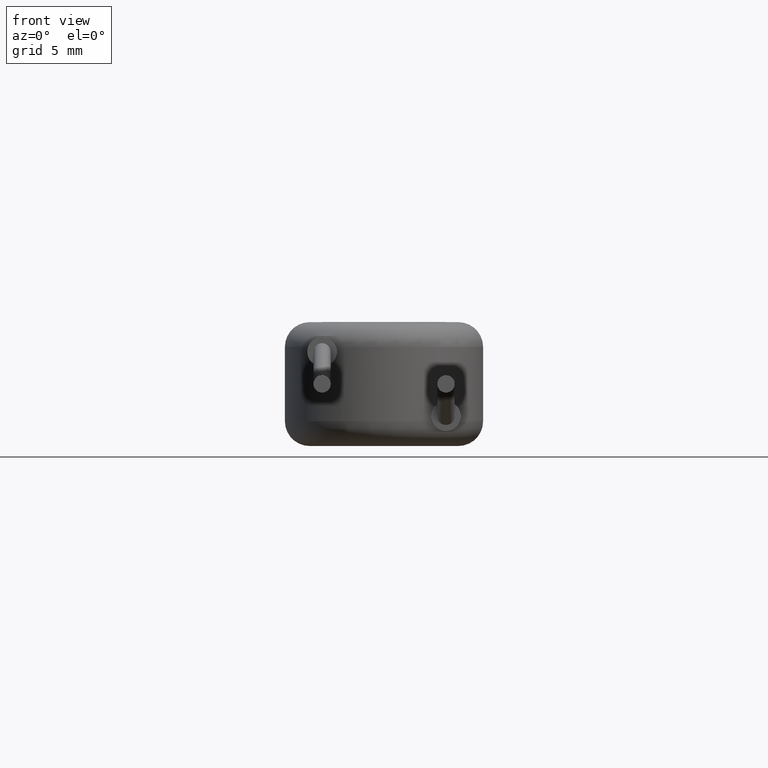
[diagram: clean part render]
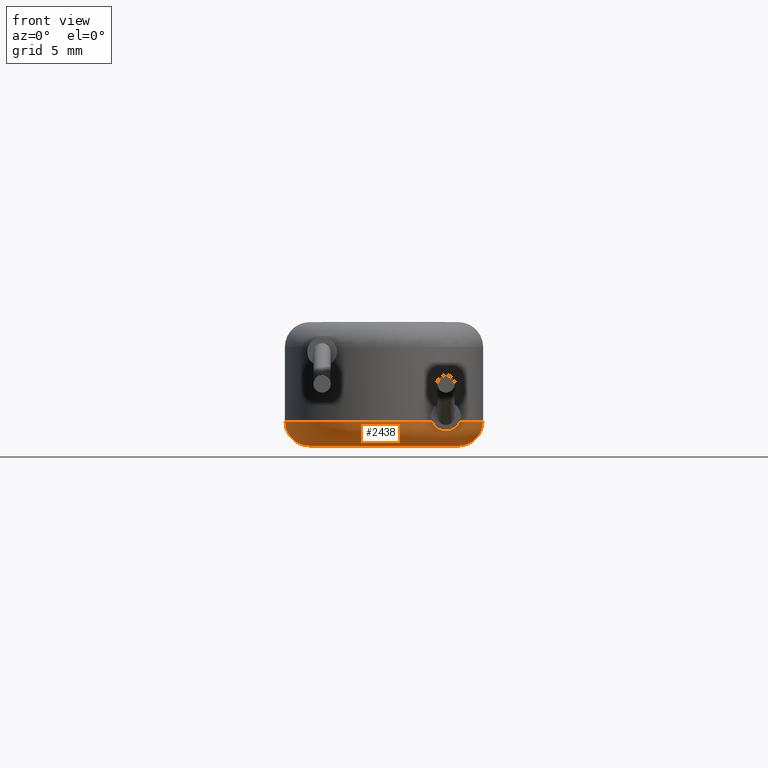
[diagram: same view with one face highlighted and labeled with its STEP entity id]
A machine part, front view. The second image highlights one B-rep face of the part: STEP entity #2438.
In plain terms, the highlighted toroidal blend (fillet) surface has major radius 3 mm and minor (blend) radius 1 mm.
Its self-contained STEP definition (entity closure, byte-faithful):
#53 = AXIS2_PLACEMENT_3D ( 'NONE', #1602, #1570, #694 ) ;
#100 = CARTESIAN_POINT ( 'NONE',  ( 2.499999999999993339, -3.014811906893560156, 0.5999999999999972022 ) ) ;
#112 = CIRCLE ( 'NONE', #1730, 4.000000000000000000 ) ;
#162 = CARTESIAN_POINT ( 'NONE',  ( 2.078338075695278064, -3.387766412183669029, 0.7681746966715831126 ) ) ;
#172 = DIRECTION ( 'NONE',  ( 1.000000000000000000, 0.000000000000000000, 0.000000000000000000 ) ) ;
#203 = VERTEX_POINT ( 'NONE', #3164 ) ;
#315 = EDGE_CURVE ( 'NONE', #931, #539, #2752, .T. ) ;
#398 = CARTESIAN_POINT ( 'NONE',  ( 2.527078140111355342, -2.992499789388510134, 0.6006113328331001977 ) ) ;
#413 = CARTESIAN_POINT ( 'NONE',  ( 2.968394557020707314, -2.681162761536464600, 1.000000000000000000 ) ) ;
#436 = CARTESIAN_POINT ( 'NONE',  ( 0.000000000000000000, 0.000000000000000000, 1.000000000000000000 ) ) ;
#459 = CARTESIAN_POINT ( 'NONE',  ( -3.000000000000000000, 3.673940397442059868E-16, 1.000000000000000000 ) ) ;
#539 = VERTEX_POINT ( 'NONE', #100 ) ;
#694 = DIRECTION ( 'NONE',  ( 1.000000000000000000, 0.000000000000000000, 0.000000000000000000 ) ) ;
#748 = DIRECTION ( 'NONE',  ( 1.224646799147353207E-16, 1.000000000000000000, -0.000000000000000000 ) ) ;
#772 = ORIENTED_EDGE ( 'NONE', *, *, #3041, .T. ) ;
#775 = DIRECTION ( 'NONE',  ( 0.000000000000000000, 0.000000000000000000, -1.000000000000000000 ) ) ;
#793 = CARTESIAN_POINT ( 'NONE',  ( -4.000000000000000000, 0.000000000000000000, 1.000000000000000000 ) ) ;
#795 = EDGE_CURVE ( 'NONE', #203, #1057, #1213, .T. ) ;
#815 = DIRECTION ( 'NONE',  ( 0.000000000000000000, 0.000000000000000000, 1.000000000000000000 ) ) ;
#880 = ORIENTED_EDGE ( 'NONE', *, *, #2181, .F. ) ;
#931 = VERTEX_POINT ( 'NONE', #2229 ) ;
#949 = EDGE_CURVE ( 'NONE', #3044, #931, #2500, .T. ) ;
#1010 = FACE_OUTER_BOUND ( 'NONE', #3300, .T. ) ;
#1023 = CARTESIAN_POINT ( 'NONE',  ( 1.995251453810876097, -3.458857795145791059, 0.8690909851288329824 ) ) ;
#1057 = VERTEX_POINT ( 'NONE', #793 ) ;
#1083 = CARTESIAN_POINT ( 'NONE',  ( 2.274436543625786289, -3.210265209407458631, 0.6316574282108478045 ) ) ;
#1113 = DIRECTION ( 'NONE',  ( 1.000000000000000000, 0.000000000000000000, 0.000000000000000000 ) ) ;
#1191 = ORIENTED_EDGE ( 'NONE', *, *, #3709, .F. ) ;
#1213 = CIRCLE ( 'NONE', #3113, 1.000000000000000000 ) ;
#1292 = CARTESIAN_POINT ( 'NONE',  ( 2.518053496787099998, -2.999888366311729282, 0.6002036331720982387 ) ) ;
#1331 = EDGE_CURVE ( 'NONE', #1057, #3582, #3750, .T. ) ;
#1341 = CARTESIAN_POINT ( 'NONE',  ( 1.959039132056450860, -3.487544059615439895, 0.9300683922708977702 ) ) ;
#1365 = ORIENTED_EDGE ( 'NONE', *, *, #949, .T. ) ;
#1397 = CARTESIAN_POINT ( 'NONE',  ( 1.934314575050757989, -3.501203667989940094, 1.000000000000001110 ) ) ;
#1428 = DIRECTION ( 'NONE',  ( 1.000000000000000000, 0.000000000000000000, 0.000000000000000000 ) ) ;
#1520 = ORIENTED_EDGE ( 'NONE', *, *, #3155, .T. ) ;
#1570 = DIRECTION ( 'NONE',  ( 0.000000000000000000, 0.000000000000000000, 1.000000000000000000 ) ) ;
#1602 = CARTESIAN_POINT ( 'NONE',  ( 0.000000000000000000, 0.000000000000000000, 1.000000000000000000 ) ) ;
#1661 = CARTESIAN_POINT ( 'NONE',  ( 2.125761128645030418, -3.344908790718628566, 0.7273285442225134734 ) ) ;
#1686 = CARTESIAN_POINT ( 'NONE',  ( 3.000000000000000000, 0.000000000000000000, 1.000000000000000000 ) ) ;
#1730 = AXIS2_PLACEMENT_3D ( 'NONE', #3780, #815, #1113 ) ;
#1875 = VERTEX_POINT ( 'NONE', #3542 ) ;
#1876 = CARTESIAN_POINT ( 'NONE',  ( 2.940507723932026973, -2.712037098872682073, 0.8874357348449959382 ) ) ;
#1906 = CARTESIAN_POINT ( 'NONE',  ( 2.968394557020707314, -2.681162761536464600, 1.000000000000000000 ) ) ;
#1930 = DIRECTION ( 'NONE',  ( -0.000000000000000000, -0.000000000000000000, -1.000000000000000000 ) ) ;
#1938 = CARTESIAN_POINT ( 'NONE',  ( 2.384809040768004262, -3.110332757604484133, 0.6000000000000007550 ) ) ;
#1967 = CIRCLE ( 'NONE', #2460, 1.000000000000000000 ) ;
#2092 = CIRCLE ( 'NONE', #2657, 3.000000000000000000 ) ;
#2181 = EDGE_CURVE ( 'NONE', #3044, #2740, #112, .T. ) ;
#2189 = ORIENTED_EDGE ( 'NONE', *, *, #315, .T. ) ;
#2229 = CARTESIAN_POINT ( 'NONE',  ( 2.527078140111355342, -2.992499789388510134, 0.6006113328331001977 ) ) ;
#2432 = DIRECTION ( 'NONE',  ( 0.000000000000000000, 0.000000000000000000, 1.000000000000000000 ) ) ;
#2438 = ADVANCED_FACE ( 'NONE', ( #1010 ), #3076, .T. ) ;
#2460 = AXIS2_PLACEMENT_3D ( 'NONE', #1686, #2592, #775 ) ;
#2465 = CARTESIAN_POINT ( 'NONE',  ( 2.509027553551942624, -3.007325906248430325, 0.5999999999999968692 ) ) ;
#2500 = B_SPLINE_CURVE_WITH_KNOTS ( 'NONE', 3,
 ( #413, #1876, #3375, #3038, #2830, #3361 ),
 .UNSPECIFIED., .F., .F.,
 ( 4, 2, 4 ),
 ( 2.101183750920754059E-07, 0.0003550189271266797038, 0.0007098277358782673985 ),
 .UNSPECIFIED. ) ;
#2522 = CARTESIAN_POINT ( 'NONE',  ( 2.499999999999993339, -3.014811906893560156, 0.5999999999999972022 ) ) ;
#2535 = CARTESIAN_POINT ( 'NONE',  ( 0.000000000000000000, 0.000000000000000000, 0.000000000000000000 ) ) ;
#2588 = ORIENTED_EDGE ( 'NONE', *, *, #795, .F. ) ;
#2592 = DIRECTION ( 'NONE',  ( 0.000000000000000000, -1.000000000000000000, 0.000000000000000000 ) ) ;
#2657 = AXIS2_PLACEMENT_3D ( 'NONE', #2535, #1930, #172 ) ;
#2740 = VERTEX_POINT ( 'NONE', #3034 ) ;
#2752 = B_SPLINE_CURVE_WITH_KNOTS ( 'NONE', 3,
 ( #398, #1292, #2465, #3405 ),
 .UNSPECIFIED., .F., .F.,
 ( 4, 4 ),
 ( 0.0002622835256612970250, 0.0002970482918024519993 ),
 .UNSPECIFIED. ) ;
#2815 = AXIS2_PLACEMENT_3D ( 'NONE', #436, #2432, #1428 ) ;
#2830 = CARTESIAN_POINT ( 'NONE',  ( 2.618841413233218507, -2.918022369046867848, 0.6058971667748601631 ) ) ;
#2833 = CARTESIAN_POINT ( 'NONE',  ( 1.934314575050757989, -3.501203667989940094, 1.000000000000001110 ) ) ;
#3034 = CARTESIAN_POINT ( 'NONE',  ( 4.000000000000000000, 4.898587196589412829E-16, 1.000000000000000000 ) ) ;
#3038 = CARTESIAN_POINT ( 'NONE',  ( 2.717019160498452379, -2.852901837493643011, 0.6471967762704560201 ) ) ;
#3041 = EDGE_CURVE ( 'NONE', #539, #3582, #3287, .T. ) ;
#3044 = VERTEX_POINT ( 'NONE', #1906 ) ;
#3076 = TOROIDAL_SURFACE ( 'NONE', #53, 3.000000000000000000, 1.000000000000000000 ) ;
#3105 = DIRECTION ( 'NONE',  ( -1.000000000000000000, 1.224646799147352961E-16, 0.000000000000000000 ) ) ;
#3113 = AXIS2_PLACEMENT_3D ( 'NONE', #459, #748, #3105 ) ;
#3155 = EDGE_CURVE ( 'NONE', #1875, #2740, #1967, .T. ) ;
#3164 = CARTESIAN_POINT ( 'NONE',  ( -3.000000000000000000, 4.286263797015736595E-16, 0.000000000000000000 ) ) ;
#3287 = B_SPLINE_CURVE_WITH_KNOTS ( 'NONE', 3,
 ( #2522, #1938, #1083, #1661, #162, #1023, #1341, #2833 ),
 .UNSPECIFIED., .F., .F.,
 ( 4, 2, 2, 4 ),
 ( 0.0002970482918024519993, 0.0007406443044126360953, 0.0009624423107177282246, 0.001184240317022820354 ),
 .UNSPECIFIED. ) ;
#3300 = EDGE_LOOP ( 'NONE', ( #2588, #1191, #1520, #880, #1365, #2189, #772, #3417 ) ) ;
#3361 = CARTESIAN_POINT ( 'NONE',  ( 2.527078140111355342, -2.992499789388510134, 0.6006113328331001977 ) ) ;
#3375 = CARTESIAN_POINT ( 'NONE',  ( 2.878306807413744561, -2.750632553528876478, 0.7886787837800725010 ) ) ;
#3405 = CARTESIAN_POINT ( 'NONE',  ( 2.499999999999993339, -3.014811906893560156, 0.5999999999999972022 ) ) ;
#3417 = ORIENTED_EDGE ( 'NONE', *, *, #1331, .F. ) ;
#3542 = CARTESIAN_POINT ( 'NONE',  ( 3.000000000000000000, 0.000000000000000000, 0.000000000000000000 ) ) ;
#3582 = VERTEX_POINT ( 'NONE', #1397 ) ;
#3709 = EDGE_CURVE ( 'NONE', #1875, #203, #2092, .T. ) ;
#3750 = CIRCLE ( 'NONE', #2815, 4.000000000000000000 ) ;
#3780 = CARTESIAN_POINT ( 'NONE',  ( 0.000000000000000000, 0.000000000000000000, 1.000000000000000000 ) ) ;